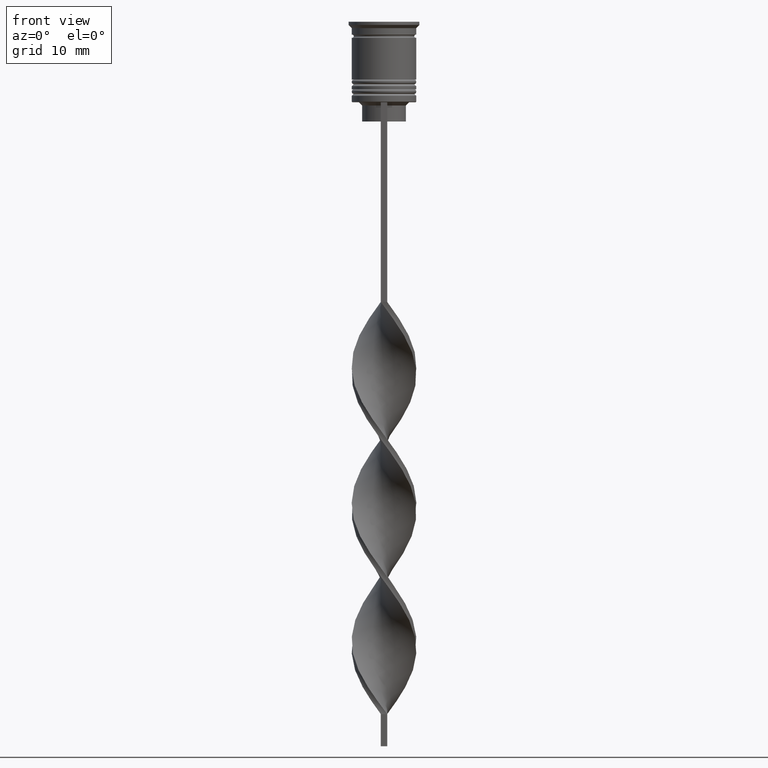
[diagram: clean part render]
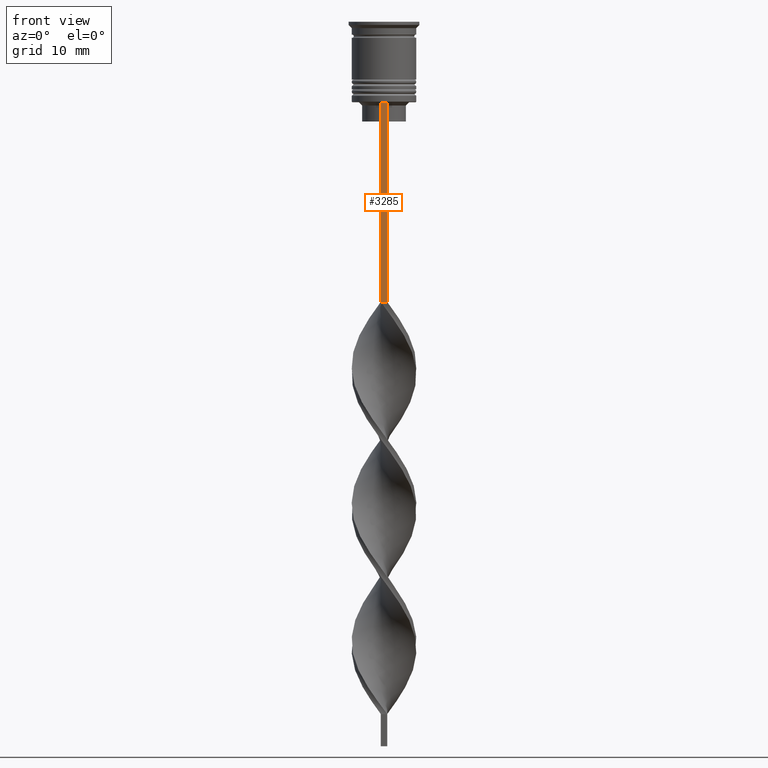
[diagram: same view with one face highlighted and labeled with its STEP entity id]
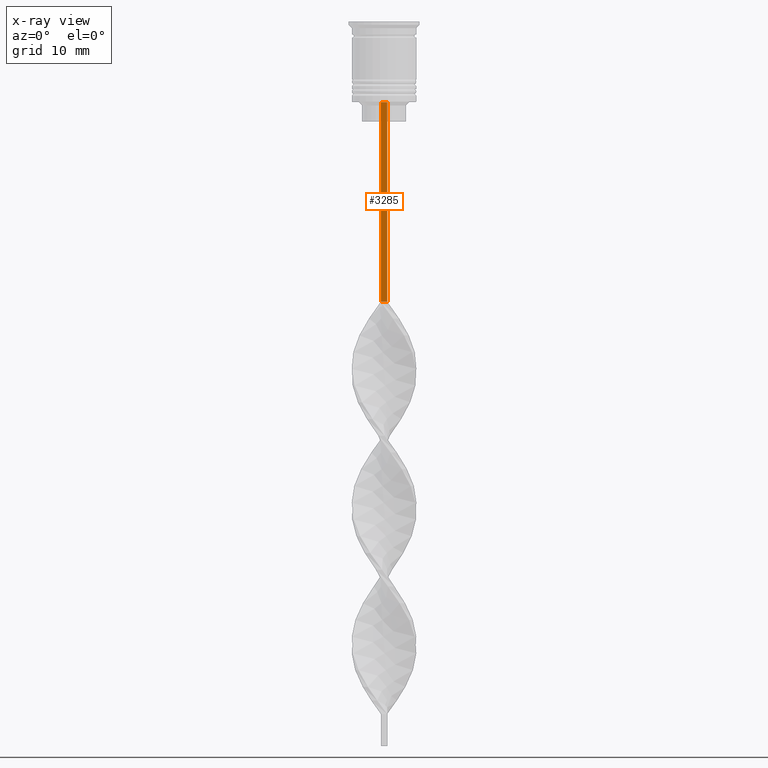
[diagram: x-ray of the same camera — body ghosted, the highlighted face saturated]
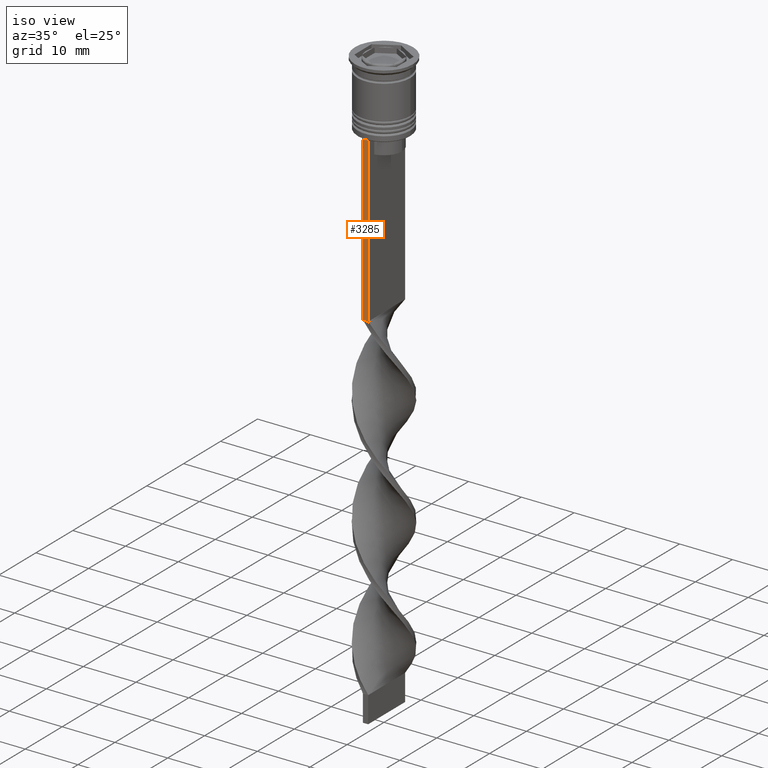
[diagram: same view with one face highlighted and labeled with its STEP entity id]
A machine part, front view. The second image highlights one B-rep face of the part: STEP entity #3285.
The next image is the same camera in x-ray: the body ghosted, the highlighted face saturated — about 0% of this face is hidden behind the body in this view.
A second angle (iso view) of the same face is appended — the face is thin or edge-on in the first view.
In plain terms, the highlighted planar face has unit normal (0, -1, -0).
Its self-contained STEP definition (entity closure, byte-faithful):
#40 = CARTESIAN_POINT ( 'NONE',  ( 0.5000000000000000000, -4.999999999999999112, -43.50000000000000000 ) ) ;
#83 = EDGE_CURVE ( 'NONE', #986, #1177, #3145, .T. ) ;
#175 = VECTOR ( 'NONE', #2953, 1000.000000000000000 ) ;
#226 = CARTESIAN_POINT ( 'NONE',  ( 0.5000000000000000000, -4.999999999999999112, -43.50000000000000000 ) ) ;
#276 = DIRECTION ( 'NONE',  ( 0.000000000000000000, 0.000000000000000000, -1.000000000000000000 ) ) ;
#347 = FACE_OUTER_BOUND ( 'NONE', #1888, .T. ) ;
#457 = DIRECTION ( 'NONE',  ( -1.000000000000000000, 0.000000000000000000, 0.000000000000000000 ) ) ;
#630 = ORIENTED_EDGE ( 'NONE', *, *, #83, .T. ) ;
#842 = DIRECTION ( 'NONE',  ( 0.000000000000000000, 0.000000000000000000, -1.000000000000000000 ) ) ;
#850 = VERTEX_POINT ( 'NONE', #3024 ) ;
#915 = CARTESIAN_POINT ( 'NONE',  ( 0.5000000000000000000, -4.999999999999999112, -12.50000000000000000 ) ) ;
#959 = CARTESIAN_POINT ( 'NONE',  ( 0.5000000000000000000, -4.999999999999999112, -2.450124378879110054 ) ) ;
#986 = VERTEX_POINT ( 'NONE', #2242 ) ;
#1044 = LINE ( 'NONE', #226, #1064 ) ;
#1046 = ORIENTED_EDGE ( 'NONE', *, *, #1784, .F. ) ;
#1064 = VECTOR ( 'NONE', #457, 1000.000000000000000 ) ;
#1177 = VERTEX_POINT ( 'NONE', #3449 ) ;
#1193 = LINE ( 'NONE', #915, #175 ) ;
#1337 = ORIENTED_EDGE ( 'NONE', *, *, #1959, .F. ) ;
#1486 = DIRECTION ( 'NONE',  ( 0.000000000000000000, -1.000000000000000000, -0.000000000000000000 ) ) ;
#1636 = VERTEX_POINT ( 'NONE', #40 ) ;
#1784 = EDGE_CURVE ( 'NONE', #986, #850, #1193, .T. ) ;
#1888 = EDGE_LOOP ( 'NONE', ( #1046, #630, #1337, #2464 ) ) ;
#1959 = EDGE_CURVE ( 'NONE', #1636, #1177, #1044, .T. ) ;
#2242 = CARTESIAN_POINT ( 'NONE',  ( -0.5000000000000000000, -4.999999999999999112, -12.50000000000000000 ) ) ;
#2244 = PLANE ( 'NONE',  #3462 ) ;
#2261 = CARTESIAN_POINT ( 'NONE',  ( 0.5000000000000000000, -4.999999999999999112, -2.450124378879110054 ) ) ;
#2464 = ORIENTED_EDGE ( 'NONE', *, *, #3459, .F. ) ;
#2578 = VECTOR ( 'NONE', #2686, 1000.000000000000000 ) ;
#2621 = VECTOR ( 'NONE', #276, 1000.000000000000000 ) ;
#2686 = DIRECTION ( 'NONE',  ( 0.000000000000000000, 0.000000000000000000, -1.000000000000000000 ) ) ;
#2906 = CARTESIAN_POINT ( 'NONE',  ( -0.5000000000000000000, -4.999999999999999112, -2.450124378879110054 ) ) ;
#2953 = DIRECTION ( 'NONE',  ( 1.000000000000000000, 0.000000000000000000, 0.000000000000000000 ) ) ;
#3024 = CARTESIAN_POINT ( 'NONE',  ( 0.5000000000000000000, -4.999999999999999112, -12.50000000000000000 ) ) ;
#3145 = LINE ( 'NONE', #2906, #2621 ) ;
#3228 = LINE ( 'NONE', #959, #2578 ) ;
#3285 = ADVANCED_FACE ( 'NONE', ( #347 ), #2244, .T. ) ;
#3449 = CARTESIAN_POINT ( 'NONE',  ( -0.5000000000000000000, -4.999999999999999112, -43.50000000000000000 ) ) ;
#3459 = EDGE_CURVE ( 'NONE', #850, #1636, #3228, .T. ) ;
#3462 = AXIS2_PLACEMENT_3D ( 'NONE', #2261, #1486, #842 ) ;